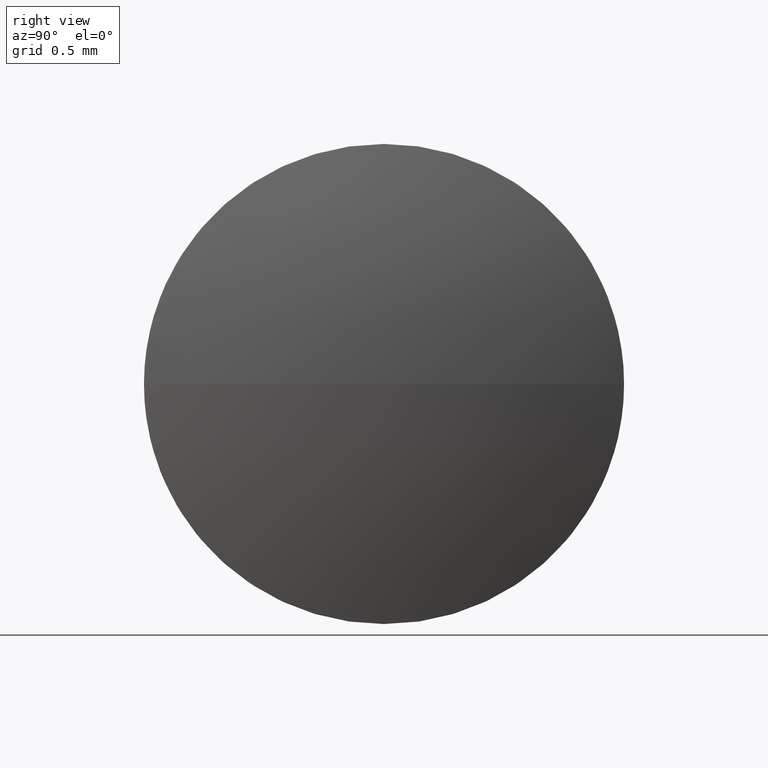
[diagram: clean part render]
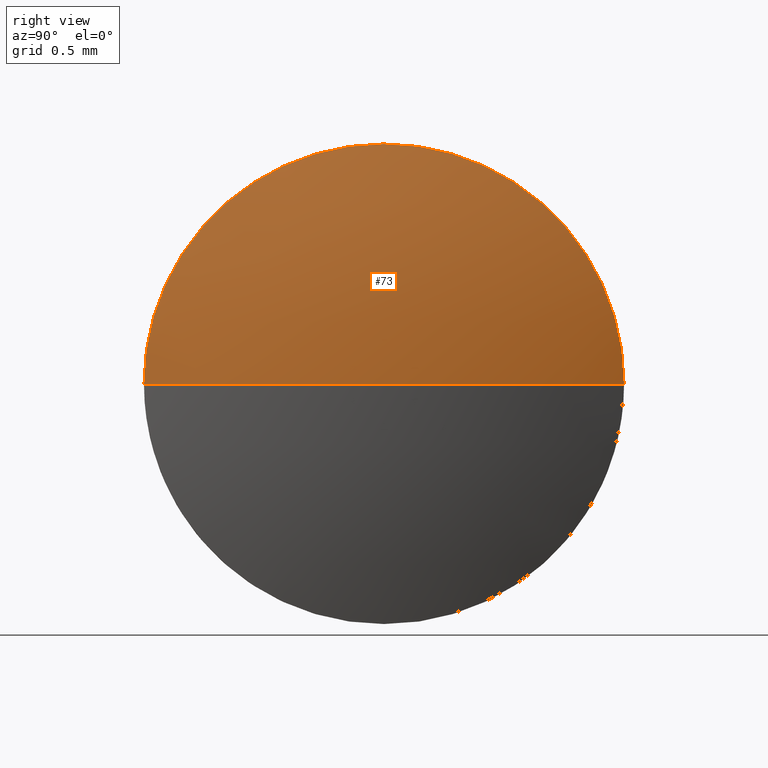
[diagram: same view with one face highlighted and labeled with its STEP entity id]
A machine part, right view. The second image highlights one B-rep face of the part: STEP entity #73.
In plain terms, the highlighted spherical surface has radius 5.2232 mm.
Its self-contained STEP definition (entity closure, byte-faithful):
#7 = DIRECTION ( 'NONE',  ( 0.0000000000000000000, 0.0000000000000000000, 1.000000000000000000 ) ) ;
#8 = EDGE_LOOP ( 'NONE', ( #112, #181, #176, #101 ) ) ;
#9 = DIRECTION ( 'NONE',  ( -1.000000000000000000, -0.0000000000000000000, -0.0000000000000000000 ) ) ;
#11 = CIRCLE ( 'NONE', #99, 1.499999999984999600 ) ;
#12 = CARTESIAN_POINT ( 'NONE',  ( 477.2783291331324400, 73.14784035914851800, 1.499999999984999600 ) ) ;
#28 = CIRCLE ( 'NONE', #123, 1.499999999984999600 ) ;
#30 = CARTESIAN_POINT ( 'NONE',  ( 472.2751274152541300, 73.14784035914854600, 0.0000000000000000000 ) ) ;
#31 = DIRECTION ( 'NONE',  ( 0.0000000000000000000, 0.0000000000000000000, 1.000000000000000000 ) ) ;
#50 = EDGE_CURVE ( 'NONE', #175, #126, #11, .T. ) ;
#55 = EDGE_CURVE ( 'NONE', #110, #93, #81, .T. ) ;
#61 = DIRECTION ( 'NONE',  ( 0.0000000000000000000, 0.0000000000000000000, 1.000000000000000000 ) ) ;
#64 = CARTESIAN_POINT ( 'NONE',  ( 477.4983474402708900, 73.14784035914854600, 0.0000000000000000000 ) ) ;
#73 = ADVANCED_FACE ( 'NONE', ( #105 ), #157, .T. ) ;
#76 = CARTESIAN_POINT ( 'NONE',  ( 477.2783291331324400, 74.64784035913355400, 1.836970198702661100E-016 ) ) ;
#81 = CIRCLE ( 'NONE', #165, 5.223220025016739300 ) ;
#86 = EDGE_CURVE ( 'NONE', #93, #175, #28, .T. ) ;
#93 = VERTEX_POINT ( 'NONE', #167 ) ;
#94 = DIRECTION ( 'NONE',  ( -1.000000000000000000, -0.0000000000000000000, -0.0000000000000000000 ) ) ;
#99 = AXIS2_PLACEMENT_3D ( 'NONE', #119, #94, #7 ) ;
#101 = ORIENTED_EDGE ( 'NONE', *, *, #86, .F. ) ;
#102 = AXIS2_PLACEMENT_3D ( 'NONE', #158, #125, #141 ) ;
#105 = FACE_OUTER_BOUND ( 'NONE', #8, .T. ) ;
#108 = DIRECTION ( 'NONE',  ( 0.0000000000000000000, 0.0000000000000000000, -1.000000000000000000 ) ) ;
#110 = VERTEX_POINT ( 'NONE', #64 ) ;
#112 = ORIENTED_EDGE ( 'NONE', *, *, #55, .F. ) ;
#113 = AXIS2_PLACEMENT_3D ( 'NONE', #120, #31, #139 ) ;
#119 = CARTESIAN_POINT ( 'NONE',  ( 477.2783291331324400, 73.14784035914851800, 0.0000000000000000000 ) ) ;
#120 = CARTESIAN_POINT ( 'NONE',  ( 472.2751274152541300, 73.14784035914854600, 0.0000000000000000000 ) ) ;
#123 = AXIS2_PLACEMENT_3D ( 'NONE', #180, #9, #61 ) ;
#125 = DIRECTION ( 'NONE',  ( 0.0000000000000000000, -1.224646799147353200E-016, 1.000000000000000000 ) ) ;
#126 = VERTEX_POINT ( 'NONE', #76 ) ;
#139 = DIRECTION ( 'NONE',  ( 0.0000000000000000000, -1.000000000000000000, 0.0000000000000000000 ) ) ;
#141 = DIRECTION ( 'NONE',  ( 0.0000000000000000000, -1.000000000000000000, -1.224646799147353000E-016 ) ) ;
#155 = DIRECTION ( 'NONE',  ( -1.000000000000000000, 0.0000000000000000000, 0.0000000000000000000 ) ) ;
#157 = SPHERICAL_SURFACE ( 'NONE', #113, 5.223220025016723300 ) ;
#158 = CARTESIAN_POINT ( 'NONE',  ( 472.2751274152541300, 73.14784035914854600, 0.0000000000000000000 ) ) ;
#165 = AXIS2_PLACEMENT_3D ( 'NONE', #30, #108, #155 ) ;
#167 = CARTESIAN_POINT ( 'NONE',  ( 477.2783291331324400, 71.64784035916352400, 0.0000000000000000000 ) ) ;
#174 = EDGE_CURVE ( 'NONE', #110, #126, #179, .T. ) ;
#175 = VERTEX_POINT ( 'NONE', #12 ) ;
#176 = ORIENTED_EDGE ( 'NONE', *, *, #50, .F. ) ;
#179 = CIRCLE ( 'NONE', #102, 5.223220025016725100 ) ;
#180 = CARTESIAN_POINT ( 'NONE',  ( 477.2783291331324400, 73.14784035914851800, 0.0000000000000000000 ) ) ;
#181 = ORIENTED_EDGE ( 'NONE', *, *, #174, .T. ) ;